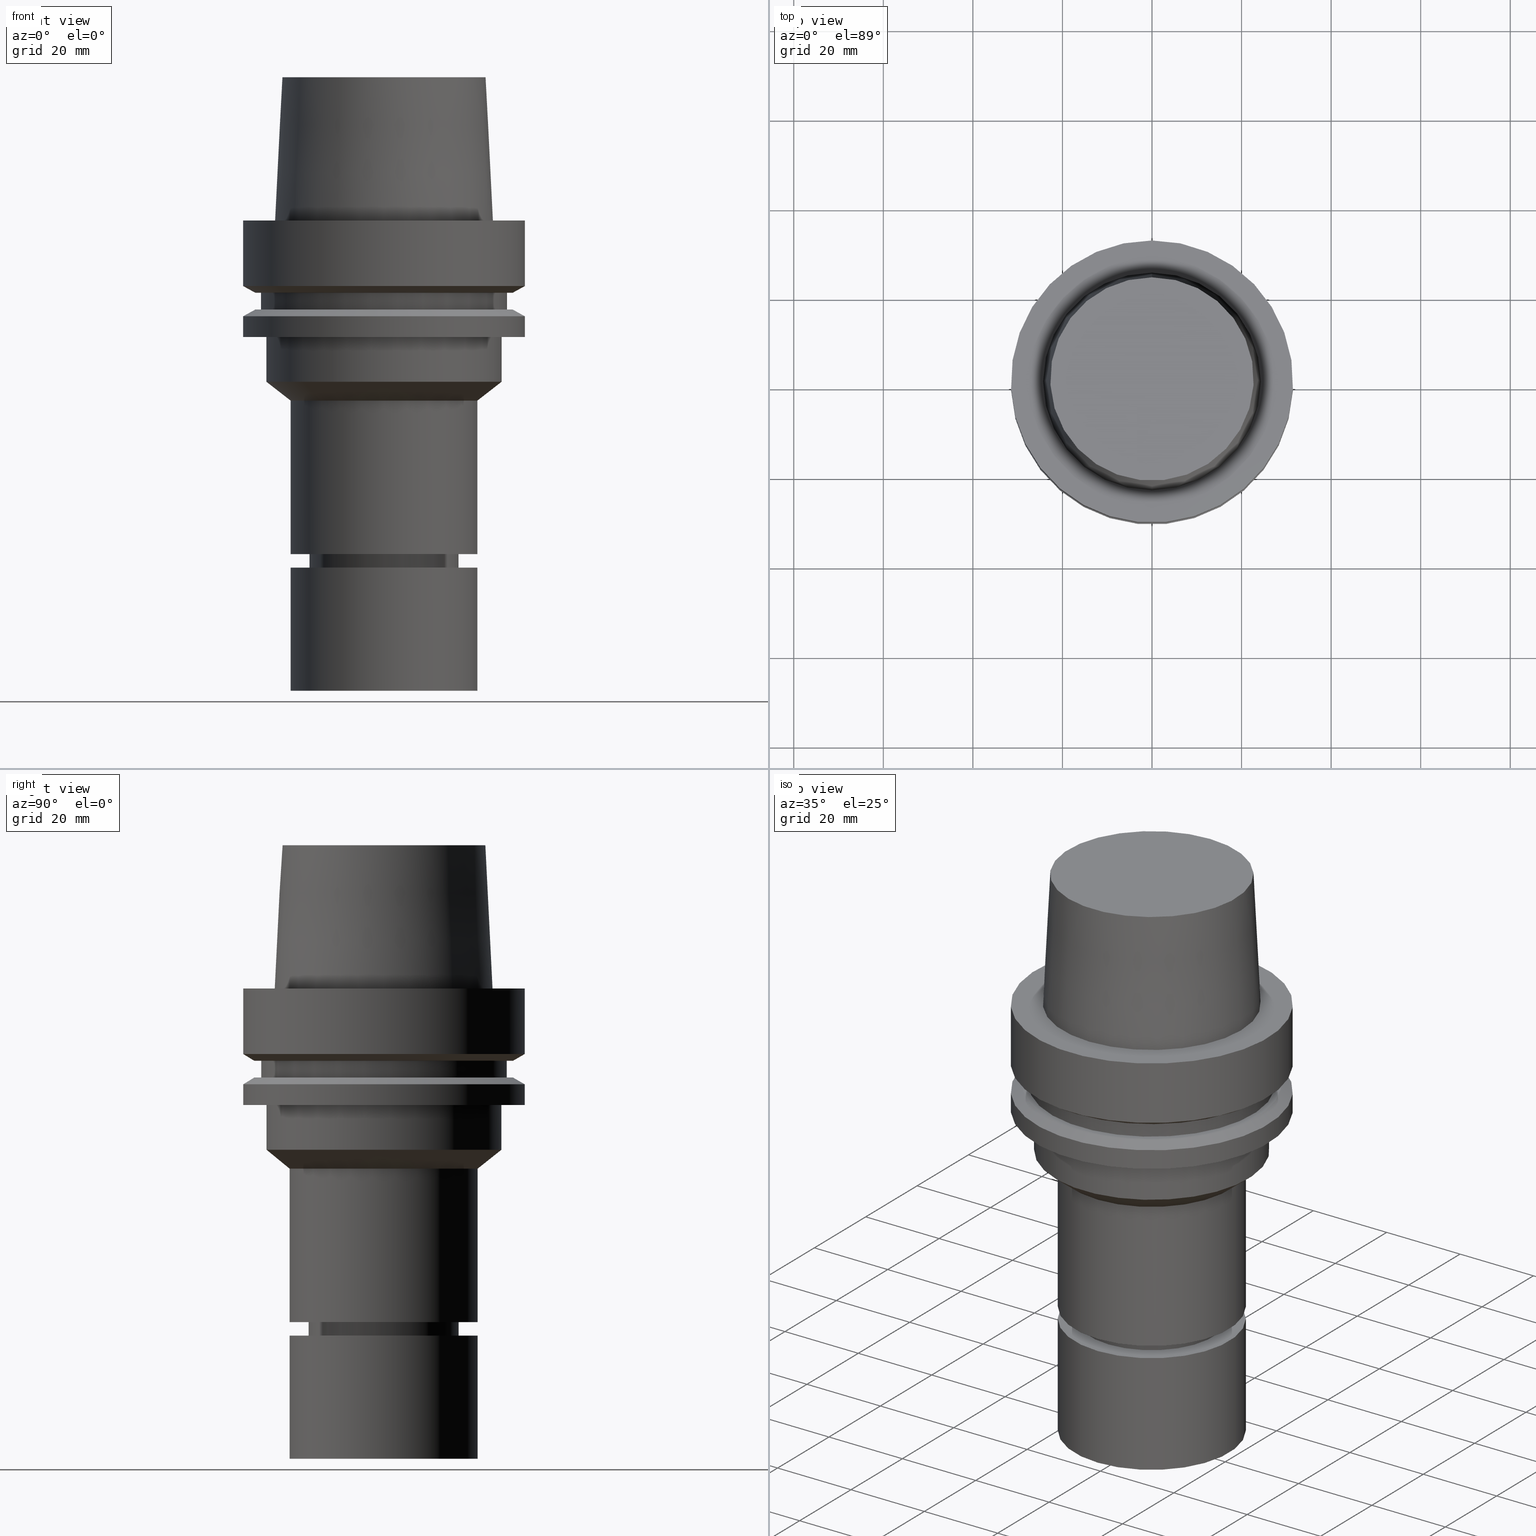
[diagram: canonical four-view strip — front | top / right | iso, engineering-drawing reading convention]
A machine part, canonical four-view strip (front | top / right | iso — engineering-drawing reading convention). The complete STEP part file that produces these views, byte-faithful:
ISO-10303-21;
HEADER;
FILE_DESCRIPTION((''),'1');
FILE_NAME('U:/Translate/02_3D_Field-HP\X2\FF71FF6FFF8CFF9F5916\X0\2013/02_Step_Field-HP\X2\FF71FF6FFF8CFF9F5916\X0\2013/HSK-A63-MEGAER25-105NL.stp','2016-06-22T00:09:00',(''),(''),'Spatial Interop R21 SP3','Kubotek KeyCreator 2011 V10.0.2 (22737)',' ');
FILE_SCHEMA(('automotive_design'));
ENDSEC;
DATA;
#1=MECHANICAL_DESIGN_GEOMETRIC_PRESENTATION_REPRESENTATION(' ',(#14,#15,#16,#17,#18,#19,#20,#21,#22,#23,#24,#25,#26,#27,#28,#29,#30,#31,#32,#33,#34,#35,#36,#37,#38,#39,#40,#41,#42,#43,#44,#45,#46,#47,#48,#49,#50,#51,#52,#53,#54,#55,#56,#57,#58,#59),#10);
#2=PRODUCT_DEFINITION_CONTEXT('',#60,'design');
#3=APPLICATION_PROTOCOL_DEFINITION('INTERNATIONAL STANDARD','automotive_design',1994,#60);
#4=PRODUCT_CATEGORY_RELATIONSHIP('NONE','NONE',#61,#62);
#5=SHAPE_DEFINITION_REPRESENTATION(#63,#64);
#6=PRODUCT_DEFINITION_CONTEXT('',#65,'design');
#7=APPLICATION_PROTOCOL_DEFINITION('INTERNATIONAL STANDARD','automotive_design',1994,#65);
#8=PRODUCT_CATEGORY_RELATIONSHIP('NONE','NONE',#66,#67);
#9=SHAPE_DEFINITION_REPRESENTATION(#68,#69);
#10= (GEOMETRIC_REPRESENTATION_CONTEXT(3)GLOBAL_UNCERTAINTY_ASSIGNED_CONTEXT((#72))GLOBAL_UNIT_ASSIGNED_CONTEXT((#74,#75,#76))REPRESENTATION_CONTEXT('NONE','WORKSPACE'));
#14=STYLED_ITEM('',(#78),#79);
#15=STYLED_ITEM('',(#80),#81);
#16=STYLED_ITEM('',(#82),#83);
#17=STYLED_ITEM('',(#84,#85),#86);
#18=STYLED_ITEM('',(#87,#88),#89);
#19=STYLED_ITEM('',(#90,#91),#92);
#20=STYLED_ITEM('',(#93),#94);
#21=STYLED_ITEM('',(#95,#96),#97);
#22=STYLED_ITEM('',(#98,#99),#100);
#23=STYLED_ITEM('',(#101),#102);
#24=STYLED_ITEM('',(#103,#104),#105);
#25=STYLED_ITEM('',(#106),#107);
#26=STYLED_ITEM('',(#108),#109);
#27=STYLED_ITEM('',(#110,#111),#112);
#28=STYLED_ITEM('',(#113,#114),#115);
#29=STYLED_ITEM('',(#116,#117),#118);
#30=STYLED_ITEM('',(#119,#120),#121);
#31=STYLED_ITEM('',(#122,#123),#124);
#32=STYLED_ITEM('',(#125,#126),#127);
#33=STYLED_ITEM('',(#128,#129),#130);
#34=STYLED_ITEM('',(#131),#132);
#35=STYLED_ITEM('',(#133,#134),#135);
#36=STYLED_ITEM('',(#136),#137);
#37=STYLED_ITEM('',(#138,#139),#140);
#38=STYLED_ITEM('',(#141,#142),#143);
#39=STYLED_ITEM('',(#144),#145);
#40=STYLED_ITEM('',(#146),#147);
#41=STYLED_ITEM('',(#148,#149),#150);
#42=STYLED_ITEM('',(#151),#152);
#43=STYLED_ITEM('',(#153),#154);
#44=STYLED_ITEM('',(#155,#156),#157);
#45=STYLED_ITEM('',(#158,#159),#160);
#46=STYLED_ITEM('',(#161),#162);
#47=STYLED_ITEM('',(#163,#164),#165);
#48=STYLED_ITEM('',(#166,#167),#168);
#49=STYLED_ITEM('',(#169),#170);
#50=STYLED_ITEM('',(#171,#172),#173);
#51=STYLED_ITEM('',(#174),#175);
#52=STYLED_ITEM('',(#176,#177),#178);
#53=STYLED_ITEM('',(#179),#180);
#54=STYLED_ITEM('',(#181),#182);
#55=STYLED_ITEM('',(#183),#184);
#56=STYLED_ITEM('',(#185),#186);
#57=STYLED_ITEM('',(#187,#188),#189);
#58=STYLED_ITEM('',(#190,#191),#192);
#59=STYLED_ITEM('',(#193),#194);
#60=APPLICATION_CONTEXT(' ');
#61=PRODUCT_CATEGORY('part','NONE');
#62=PRODUCT_RELATED_PRODUCT_CATEGORY('detail',' ',(#195));
#63=PRODUCT_DEFINITION_SHAPE('NONE','NONE',#196);
#64=ADVANCED_BREP_SHAPE_REPRESENTATION('Unnamed[1]',(#157,#197),#10);
#65=APPLICATION_CONTEXT(' ');
#66=PRODUCT_CATEGORY('part','NONE');
#67=PRODUCT_RELATED_PRODUCT_CATEGORY('detail',' ',(#198));
#68=PRODUCT_DEFINITION_SHAPE('NONE','NONE',#199);
#69=ADVANCED_BREP_SHAPE_REPRESENTATION('Unnamed[1]',(#118,#200),#10);
#72=UNCERTAINTY_MEASURE_WITH_UNIT(LENGTH_MEASURE(1.0E-006),#74,'','');
#74= (CONVERSION_BASED_UNIT('MILLIMETRE',#203)LENGTH_UNIT()NAMED_UNIT(#206));
#75= (NAMED_UNIT(#208)PLANE_ANGLE_UNIT()SI_UNIT($,.RADIAN.));
#76= (NAMED_UNIT(#208)SOLID_ANGLE_UNIT()SI_UNIT($,.STERADIAN.));
#78=PRESENTATION_STYLE_ASSIGNMENT((#214));
#79=EDGE_CURVE('Unnamed[1]',#215,#215,#216,.T.);
#80=PRESENTATION_STYLE_ASSIGNMENT((#217));
#81=EDGE_CURVE('Unnamed[1]',#218,#218,#219,.T.);
#82=PRESENTATION_STYLE_ASSIGNMENT((#220));
#83=EDGE_CURVE('Unnamed[1]',#221,#221,#222,.T.);
#84=PRESENTATION_STYLE_ASSIGNMENT((#223));
#85=PRESENTATION_STYLE_ASSIGNMENT((#224));
#86=ADVANCED_FACE('Unnamed[1]',(#225,#226),#227,.T.);
#87=PRESENTATION_STYLE_ASSIGNMENT((#228));
#88=PRESENTATION_STYLE_ASSIGNMENT((#229));
#89=ADVANCED_FACE('Unnamed[1]',(#230,#231),#232,.T.);
#90=PRESENTATION_STYLE_ASSIGNMENT((#233));
#91=PRESENTATION_STYLE_ASSIGNMENT((#234));
#92=ADVANCED_FACE('Unnamed[1]',(#235,#236),#237,.T.);
#93=PRESENTATION_STYLE_ASSIGNMENT((#238));
#94=EDGE_CURVE('Unnamed[1]',#239,#239,#240,.T.);
#95=PRESENTATION_STYLE_ASSIGNMENT((#241));
#96=PRESENTATION_STYLE_ASSIGNMENT((#242));
#97=ADVANCED_FACE('Unnamed[1]',(#243,#244),#245,.T.);
#98=PRESENTATION_STYLE_ASSIGNMENT((#246));
#99=PRESENTATION_STYLE_ASSIGNMENT((#247));
#100=ADVANCED_FACE('Unnamed[1]',(#248),#249,.T.);
#101=PRESENTATION_STYLE_ASSIGNMENT((#250));
#102=EDGE_CURVE('Unnamed[1]',#251,#251,#252,.T.);
#103=PRESENTATION_STYLE_ASSIGNMENT((#253));
#104=PRESENTATION_STYLE_ASSIGNMENT((#254));
#105=ADVANCED_FACE('Unnamed[1]',(#255,#256),#257,.T.);
#106=PRESENTATION_STYLE_ASSIGNMENT((#258));
#107=EDGE_CURVE('Unnamed[1]',#259,#259,#260,.T.);
#108=PRESENTATION_STYLE_ASSIGNMENT((#261));
#109=EDGE_CURVE('Unnamed[1]',#262,#262,#263,.T.);
#110=PRESENTATION_STYLE_ASSIGNMENT((#264));
#111=PRESENTATION_STYLE_ASSIGNMENT((#265));
#112=ADVANCED_FACE('Unnamed[1]',(#266,#267),#268,.T.);
#113=PRESENTATION_STYLE_ASSIGNMENT((#269));
#114=PRESENTATION_STYLE_ASSIGNMENT((#270));
#115=ADVANCED_FACE('Unnamed[1]',(#271,#272),#273,.T.);
#116=PRESENTATION_STYLE_ASSIGNMENT((#274));
#117=PRESENTATION_STYLE_ASSIGNMENT((#275));
#118=MANIFOLD_SOLID_BREP('Unnamed[1]',#276);
#119=PRESENTATION_STYLE_ASSIGNMENT((#277));
#120=PRESENTATION_STYLE_ASSIGNMENT((#278));
#121=ADVANCED_FACE('Unnamed[1]',(#279,#280),#281,.T.);
#122=PRESENTATION_STYLE_ASSIGNMENT((#282));
#123=PRESENTATION_STYLE_ASSIGNMENT((#283));
#124=ADVANCED_FACE('Unnamed[1]',(#284,#285),#286,.T.);
#125=PRESENTATION_STYLE_ASSIGNMENT((#287));
#126=PRESENTATION_STYLE_ASSIGNMENT((#288));
#127=ADVANCED_FACE('Unnamed[1]',(#289,#290),#291,.T.);
#128=PRESENTATION_STYLE_ASSIGNMENT((#292));
#129=PRESENTATION_STYLE_ASSIGNMENT((#293));
#130=ADVANCED_FACE('Unnamed[1]',(#294,#295),#296,.T.);
#131=PRESENTATION_STYLE_ASSIGNMENT((#297));
#132=EDGE_CURVE('Unnamed[1]',#298,#298,#299,.T.);
#133=PRESENTATION_STYLE_ASSIGNMENT((#300));
#134=PRESENTATION_STYLE_ASSIGNMENT((#301));
#135=ADVANCED_FACE('Unnamed[1]',(#302,#303),#304,.T.);
#136=PRESENTATION_STYLE_ASSIGNMENT((#305));
#137=EDGE_CURVE('Unnamed[1]',#306,#306,#307,.T.);
#138=PRESENTATION_STYLE_ASSIGNMENT((#308));
#139=PRESENTATION_STYLE_ASSIGNMENT((#309));
#140=ADVANCED_FACE('Unnamed[1]',(#310,#311),#312,.T.);
#141=PRESENTATION_STYLE_ASSIGNMENT((#313));
#142=PRESENTATION_STYLE_ASSIGNMENT((#314));
#143=ADVANCED_FACE('Unnamed[1]',(#315,#316),#317,.T.);
#144=PRESENTATION_STYLE_ASSIGNMENT((#318));
#145=EDGE_CURVE('Unnamed[1]',#319,#319,#320,.T.);
#146=PRESENTATION_STYLE_ASSIGNMENT((#321));
#147=EDGE_CURVE('Unnamed[1]',#322,#322,#323,.T.);
#148=PRESENTATION_STYLE_ASSIGNMENT((#324));
#149=PRESENTATION_STYLE_ASSIGNMENT((#325));
#150=ADVANCED_FACE('Unnamed[1]',(#326,#327),#328,.T.);
#151=PRESENTATION_STYLE_ASSIGNMENT((#329));
#152=EDGE_CURVE('Unnamed[1]',#330,#330,#331,.T.);
#153=PRESENTATION_STYLE_ASSIGNMENT((#332));
#154=EDGE_CURVE('Unnamed[1]',#333,#333,#334,.T.);
#155=PRESENTATION_STYLE_ASSIGNMENT((#335));
#156=PRESENTATION_STYLE_ASSIGNMENT((#336));
#157=MANIFOLD_SOLID_BREP('Unnamed[1]',#337);
#158=PRESENTATION_STYLE_ASSIGNMENT((#338));
#159=PRESENTATION_STYLE_ASSIGNMENT((#339));
#160=ADVANCED_FACE('Unnamed[1]',(#340),#341,.T.);
#161=PRESENTATION_STYLE_ASSIGNMENT((#342));
#162=EDGE_CURVE('Unnamed[1]',#343,#343,#344,.T.);
#163=PRESENTATION_STYLE_ASSIGNMENT((#345));
#164=PRESENTATION_STYLE_ASSIGNMENT((#346));
#165=ADVANCED_FACE('Unnamed[1]',(#347),#348,.T.);
#166=PRESENTATION_STYLE_ASSIGNMENT((#349));
#167=PRESENTATION_STYLE_ASSIGNMENT((#350));
#168=ADVANCED_FACE('Unnamed[1]',(#351),#352,.T.);
#169=PRESENTATION_STYLE_ASSIGNMENT((#353));
#170=EDGE_CURVE('Unnamed[1]',#354,#354,#355,.T.);
#171=PRESENTATION_STYLE_ASSIGNMENT((#356));
#172=PRESENTATION_STYLE_ASSIGNMENT((#357));
#173=ADVANCED_FACE('Unnamed[1]',(#358,#359),#360,.T.);
#174=PRESENTATION_STYLE_ASSIGNMENT((#361));
#175=EDGE_CURVE('Unnamed[1]',#362,#362,#363,.T.);
#176=PRESENTATION_STYLE_ASSIGNMENT((#364));
#177=PRESENTATION_STYLE_ASSIGNMENT((#365));
#178=ADVANCED_FACE('Unnamed[1]',(#366,#367),#368,.T.);
#179=PRESENTATION_STYLE_ASSIGNMENT((#369));
#180=EDGE_CURVE('Unnamed[1]',#370,#370,#371,.T.);
#181=PRESENTATION_STYLE_ASSIGNMENT((#372));
#182=EDGE_CURVE('Unnamed[1]',#373,#373,#374,.T.);
#183=PRESENTATION_STYLE_ASSIGNMENT((#375));
#184=EDGE_CURVE('Unnamed[1]',#376,#376,#377,.T.);
#185=PRESENTATION_STYLE_ASSIGNMENT((#378));
#186=EDGE_CURVE('Unnamed[1]',#379,#379,#380,.T.);
#187=PRESENTATION_STYLE_ASSIGNMENT((#381));
#188=PRESENTATION_STYLE_ASSIGNMENT((#382));
#189=ADVANCED_FACE('Unnamed[1]',(#383,#384),#385,.T.);
#190=PRESENTATION_STYLE_ASSIGNMENT((#386));
#191=PRESENTATION_STYLE_ASSIGNMENT((#387));
#192=ADVANCED_FACE('Unnamed[1]',(#388,#389),#390,.T.);
#193=PRESENTATION_STYLE_ASSIGNMENT((#391));
#194=EDGE_CURVE('Unnamed[1]',#392,#392,#393,.T.);
#195=PRODUCT('Unnamed[1]','Unnamed[1]','PART-Unnamed[1]-DESC',(#394));
#196=PRODUCT_DEFINITION('NONE','NONE',#395,#2);
#197=AXIS2_PLACEMENT_3D('',#396,#397,#398);
#198=PRODUCT('Unnamed[1]','Unnamed[1]','PART-Unnamed[1]-DESC',(#399));
#199=PRODUCT_DEFINITION('NONE','NONE',#400,#6);
#200=AXIS2_PLACEMENT_3D('',#401,#402,#403);
#203=LENGTH_MEASURE_WITH_UNIT(LENGTH_MEASURE(1.0),#404);
#206=DIMENSIONAL_EXPONENTS(1.0,0.0,0.0,0.0,0.0,0.0,0.0);
#208=DIMENSIONAL_EXPONENTS(0.0,0.0,0.0,0.0,0.0,0.0,0.0);
#214=CURVE_STYLE('',#405,POSITIVE_LENGTH_MEASURE(1000.0),#406);
#215=VERTEX_POINT('',#407);
#216=CIRCLE('',#408,27.5);
#217=CURVE_STYLE('',#409,POSITIVE_LENGTH_MEASURE(1000.0),#410);
#218=VERTEX_POINT('',#411);
#219=CIRCLE('',#412,16.0);
#220=CURVE_STYLE('',#413,POSITIVE_LENGTH_MEASURE(1000.0),#414);
#221=VERTEX_POINT('',#415);
#222=CIRCLE('',#416,22.715);
#223=SURFACE_STYLE_USAGE(.BOTH.,#417);
#224=CURVE_STYLE('',#418,POSITIVE_LENGTH_MEASURE(1000.0),#419);
#225=FACE_BOUND('',#420,.T.);
#226=FACE_BOUND('',#421,.T.);
#227=CYLINDRICAL_SURFACE('',#422,27.4999999999994);
#228=SURFACE_STYLE_USAGE(.BOTH.,#423);
#229=CURVE_STYLE('',#424,POSITIVE_LENGTH_MEASURE(1000.0),#425);
#230=FACE_OUTER_BOUND('',#426,.T.);
#231=FACE_BOUND('',#427,.T.);
#232=PLANE('',#428);
#233=SURFACE_STYLE_USAGE(.BOTH.,#429);
#234=CURVE_STYLE('',#430,POSITIVE_LENGTH_MEASURE(1000.0),#431);
#235=FACE_BOUND('',#432,.T.);
#236=FACE_BOUND('',#433,.T.);
#237=CONICAL_SURFACE('',#434,23.65,0.898977865223857);
#238=CURVE_STYLE('',#435,POSITIVE_LENGTH_MEASURE(1000.0),#436);
#239=VERTEX_POINT('',#437);
#240=CIRCLE('',#438,31.4999999999998);
#241=SURFACE_STYLE_USAGE(.BOTH.,#439);
#242=CURVE_STYLE('',#440,POSITIVE_LENGTH_MEASURE(1000.0),#441);
#243=FACE_OUTER_BOUND('',#442,.T.);
#244=FACE_BOUND('',#443,.T.);
#245=PLANE('',#444);
#246=SURFACE_STYLE_USAGE(.BOTH.,#445);
#247=CURVE_STYLE('',#446,POSITIVE_LENGTH_MEASURE(1000.0),#447);
#248=FACE_OUTER_BOUND('',#448,.T.);
#249=PLANE('',#449);
#250=CURVE_STYLE('',#450,POSITIVE_LENGTH_MEASURE(1000.0),#451);
#251=VERTEX_POINT('',#452);
#252=CIRCLE('',#453,28.8975952641919);
#253=SURFACE_STYLE_USAGE(.BOTH.,#454);
#254=CURVE_STYLE('',#455,POSITIVE_LENGTH_MEASURE(1000.0),#456);
#255=FACE_BOUND('',#457,.T.);
#256=FACE_OUTER_BOUND('',#458,.T.);
#257=PLANE('',#459);
#258=CURVE_STYLE('',#460,POSITIVE_LENGTH_MEASURE(1000.0),#461);
#259=VERTEX_POINT('',#462);
#260=CIRCLE('',#463,31.5000000000001);
#261=CURVE_STYLE('',#464,POSITIVE_LENGTH_MEASURE(1000.0),#465);
#262=VERTEX_POINT('',#466);
#263=CIRCLE('',#467,28.8975952641919);
#264=SURFACE_STYLE_USAGE(.BOTH.,#468);
#265=CURVE_STYLE('',#469,POSITIVE_LENGTH_MEASURE(1000.0),#470);
#266=FACE_BOUND('',#471,.T.);
#267=FACE_BOUND('',#472,.T.);
#268=CONICAL_SURFACE('',#473,30.1987976320959,1.04719755119657);
#269=SURFACE_STYLE_USAGE(.BOTH.,#474);
#270=CURVE_STYLE('',#475,POSITIVE_LENGTH_MEASURE(1000.0),#476);
#271=FACE_OUTER_BOUND('',#477,.T.);
#272=FACE_BOUND('',#478,.T.);
#273=PLANE('',#479);
#274=SURFACE_STYLE_USAGE(.BOTH.,#480);
#275=CURVE_STYLE('',#481,POSITIVE_LENGTH_MEASURE(1000.0),#482);
#276=CLOSED_SHELL('',(#160,#168,#189));
#277=SURFACE_STYLE_USAGE(.BOTH.,#483);
#278=CURVE_STYLE('',#484,POSITIVE_LENGTH_MEASURE(1000.0),#485);
#279=FACE_BOUND('',#486,.T.);
#280=FACE_BOUND('',#487,.T.);
#281=CONICAL_SURFACE('',#488,16.3750000000008,0.846178977407518);
#282=SURFACE_STYLE_USAGE(.BOTH.,#489);
#283=CURVE_STYLE('',#490,POSITIVE_LENGTH_MEASURE(1000.0),#491);
#284=FACE_BOUND('',#492,.T.);
#285=FACE_BOUND('',#493,.T.);
#286=CONICAL_SURFACE('',#494,23.515,0.0499583957219433);
#287=SURFACE_STYLE_USAGE(.BOTH.,#495);
#288=CURVE_STYLE('',#496,POSITIVE_LENGTH_MEASURE(1000.0),#497);
#289=FACE_BOUND('',#498,.T.);
#290=FACE_BOUND('',#499,.T.);
#291=CYLINDRICAL_SURFACE('',#500,16.7499999999962);
#292=SURFACE_STYLE_USAGE(.BOTH.,#501);
#293=CURVE_STYLE('',#502,POSITIVE_LENGTH_MEASURE(1000.0),#503);
#294=FACE_BOUND('',#504,.T.);
#295=FACE_BOUND('',#505,.T.);
#296=CYLINDRICAL_SURFACE('',#506,31.5);
#297=CURVE_STYLE('',#507,POSITIVE_LENGTH_MEASURE(1000.0),#508);
#298=VERTEX_POINT('',#509);
#299=CIRCLE('',#510,14.9000000000006);
#300=SURFACE_STYLE_USAGE(.BOTH.,#511);
#301=CURVE_STYLE('',#512,POSITIVE_LENGTH_MEASURE(1000.0),#513);
#302=FACE_BOUND('',#514,.T.);
#303=FACE_BOUND('',#515,.T.);
#304=CYLINDRICAL_SURFACE('',#516,21.0);
#305=CURVE_STYLE('',#517,POSITIVE_LENGTH_MEASURE(1000.0),#518);
#306=VERTEX_POINT('',#519);
#307=CIRCLE('',#520,16.7499999999907);
#308=SURFACE_STYLE_USAGE(.BOTH.,#521);
#309=CURVE_STYLE('',#522,POSITIVE_LENGTH_MEASURE(1000.0),#523);
#310=FACE_BOUND('',#524,.T.);
#311=FACE_BOUND('',#525,.T.);
#312=CONICAL_SURFACE('',#526,15.4500000000003,0.523598775598048);
#313=SURFACE_STYLE_USAGE(.BOTH.,#527);
#314=CURVE_STYLE('',#528,POSITIVE_LENGTH_MEASURE(1000.0),#529);
#315=FACE_BOUND('',#530,.T.);
#316=FACE_BOUND('',#531,.T.);
#317=CYLINDRICAL_SURFACE('',#532,16.0);
#318=CURVE_STYLE('',#533,POSITIVE_LENGTH_MEASURE(1000.0),#534);
#319=VERTEX_POINT('',#535);
#320=CIRCLE('',#536,21.0);
#321=CURVE_STYLE('',#537,POSITIVE_LENGTH_MEASURE(1000.0),#538);
#322=VERTEX_POINT('',#539);
#323=CIRCLE('',#540,26.3);
#324=SURFACE_STYLE_USAGE(.BOTH.,#541);
#325=CURVE_STYLE('',#542,POSITIVE_LENGTH_MEASURE(1000.0),#543);
#326=FACE_BOUND('',#544,.T.);
#327=FACE_BOUND('',#545,.T.);
#328=CONICAL_SURFACE('',#546,30.1987976320959,1.04719755119657);
#329=CURVE_STYLE('',#547,POSITIVE_LENGTH_MEASURE(1000.0),#548);
#330=VERTEX_POINT('',#549);
#331=CIRCLE('',#550,27.4999999999989);
#332=CURVE_STYLE('',#551,POSITIVE_LENGTH_MEASURE(1000.0),#552);
#333=VERTEX_POINT('',#553);
#334=CIRCLE('',#554,24.315);
#335=SURFACE_STYLE_USAGE(.BOTH.,#555);
#336=CURVE_STYLE('',#556,POSITIVE_LENGTH_MEASURE(1000.0),#557);
#337=CLOSED_SHELL('',(#165,#140,#143,#121,#127,#89,#135,#92,#178,#97,#192,#150,#173,#86,#115,#112,#130,#105,#124,#100));
#338=SURFACE_STYLE_USAGE(.BOTH.,#558);
#339=CURVE_STYLE('',#559,POSITIVE_LENGTH_MEASURE(1000.0),#560);
#340=FACE_OUTER_BOUND('',#561,.T.);
#341=PLANE('',#562);
#342=CURVE_STYLE('',#563,POSITIVE_LENGTH_MEASURE(1000.0),#564);
#343=VERTEX_POINT('',#565);
#344=CIRCLE('',#566,21.0);
#345=SURFACE_STYLE_USAGE(.BOTH.,#567);
#346=CURVE_STYLE('',#568,POSITIVE_LENGTH_MEASURE(1000.0),#569);
#347=FACE_OUTER_BOUND('',#570,.T.);
#348=PLANE('',#571);
#349=SURFACE_STYLE_USAGE(.BOTH.,#572);
#350=CURVE_STYLE('',#573,POSITIVE_LENGTH_MEASURE(1000.0),#574);
#351=FACE_OUTER_BOUND('',#575,.T.);
#352=PLANE('',#576);
#353=CURVE_STYLE('',#577,POSITIVE_LENGTH_MEASURE(1000.0),#578);
#354=VERTEX_POINT('',#579);
#355=CIRCLE('',#580,31.5);
#356=SURFACE_STYLE_USAGE(.BOTH.,#581);
#357=CURVE_STYLE('',#582,POSITIVE_LENGTH_MEASURE(1000.0),#583);
#358=FACE_BOUND('',#584,.T.);
#359=FACE_OUTER_BOUND('',#585,.T.);
#360=PLANE('',#586);
#361=CURVE_STYLE('',#587,POSITIVE_LENGTH_MEASURE(1000.0),#588);
#362=VERTEX_POINT('',#589);
#363=CIRCLE('',#590,21.0);
#364=SURFACE_STYLE_USAGE(.BOTH.,#591);
#365=CURVE_STYLE('',#592,POSITIVE_LENGTH_MEASURE(1000.0),#593);
#366=FACE_BOUND('',#594,.T.);
#367=FACE_BOUND('',#595,.T.);
#368=CYLINDRICAL_SURFACE('',#596,26.3);
#369=CURVE_STYLE('',#597,POSITIVE_LENGTH_MEASURE(1000.0),#598);
#370=VERTEX_POINT('',#599);
#371=CIRCLE('',#600,16.0);
#372=CURVE_STYLE('',#601,POSITIVE_LENGTH_MEASURE(1000.0),#602);
#373=VERTEX_POINT('',#603);
#374=CIRCLE('',#604,21.0);
#375=CURVE_STYLE('',#605,POSITIVE_LENGTH_MEASURE(1000.0),#606);
#376=VERTEX_POINT('',#607);
#377=CIRCLE('',#608,16.7500000000017);
#378=CURVE_STYLE('',#609,POSITIVE_LENGTH_MEASURE(1000.0),#610);
#379=VERTEX_POINT('',#611);
#380=CIRCLE('',#612,31.5);
#381=SURFACE_STYLE_USAGE(.BOTH.,#613);
#382=CURVE_STYLE('',#614,POSITIVE_LENGTH_MEASURE(1000.0),#615);
#383=FACE_BOUND('',#616,.T.);
#384=FACE_BOUND('',#617,.T.);
#385=CYLINDRICAL_SURFACE('',#618,21.0);
#386=SURFACE_STYLE_USAGE(.BOTH.,#619);
#387=CURVE_STYLE('',#620,POSITIVE_LENGTH_MEASURE(1000.0),#621);
#388=FACE_BOUND('',#622,.T.);
#389=FACE_BOUND('',#623,.T.);
#390=CYLINDRICAL_SURFACE('',#624,31.4999999999999);
#391=CURVE_STYLE('',#625,POSITIVE_LENGTH_MEASURE(1000.0),#626);
#392=VERTEX_POINT('',#627);
#393=CIRCLE('',#628,26.3);
#394=PRODUCT_CONTEXT('',#60,'mechanical');
#395=PRODUCT_DEFINITION_FORMATION_WITH_SPECIFIED_SOURCE(' ','NONE',#195,.NOT_KNOWN.);
#396=CARTESIAN_POINT('',(0.0,0.0,0.0));
#397=DIRECTION('',(0.0,0.0,1.0));
#398=DIRECTION('',(1.0,0.0,0.0));
#399=PRODUCT_CONTEXT('',#65,'mechanical');
#400=PRODUCT_DEFINITION_FORMATION_WITH_SPECIFIED_SOURCE(' ','NONE',#198,.NOT_KNOWN.);
#401=CARTESIAN_POINT('',(0.0,0.0,0.0));
#402=DIRECTION('',(0.0,0.0,1.0));
#403=DIRECTION('',(1.0,0.0,0.0));
#404= (NAMED_UNIT(#206)LENGTH_UNIT()SI_UNIT(.MILLI.,.METRE.));
#405=DRAUGHTING_PRE_DEFINED_CURVE_FONT('continuous');
#406=COLOUR_RGB('',0.0,1.0,0.0);
#407=CARTESIAN_POINT('',(9.87371481812537E-016,27.5,-16.1249999999997));
#408=AXIS2_PLACEMENT_3D('',#630,#631,#632);
#409=DRAUGHTING_PRE_DEFINED_CURVE_FONT('continuous');
#410=COLOUR_RGB('',0.0,1.0,0.0);
#411=CARTESIAN_POINT('',(4.96785797576917E-015,16.0,-81.131277674967));
#412=AXIS2_PLACEMENT_3D('',#633,#634,#635);
#413=DRAUGHTING_PRE_DEFINED_CURVE_FONT('continuous');
#414=COLOUR_RGB('',0.0,1.0,0.0);
#415=CARTESIAN_POINT('',(-1.95943487863576E-015,22.715,32.0));
#416=AXIS2_PLACEMENT_3D('',#636,#637,#638);
#417=SURFACE_SIDE_STYLE('',(#639));
#418=DRAUGHTING_PRE_DEFINED_CURVE_FONT('continuous');
#419=COLOUR_RGB('',0.0,1.0,0.0);
#420=EDGE_LOOP('',(#640));
#421=EDGE_LOOP('',(#641));
#422=AXIS2_PLACEMENT_3D('',#642,#643,#644);
#423=SURFACE_SIDE_STYLE('',(#645));
#424=DRAUGHTING_PRE_DEFINED_CURVE_FONT('continuous');
#425=COLOUR_RGB('',0.0,1.0,0.0);
#426=EDGE_LOOP('',(#646));
#427=EDGE_LOOP('',(#647));
#428=AXIS2_PLACEMENT_3D('',#648,#649,#650);
#429=SURFACE_SIDE_STYLE('',(#651));
#430=DRAUGHTING_PRE_DEFINED_CURVE_FONT('continuous');
#431=COLOUR_RGB('',0.0,1.0,0.0);
#432=EDGE_LOOP('',(#652));
#433=EDGE_LOOP('',(#653));
#434=AXIS2_PLACEMENT_3D('',#654,#655,#656);
#435=DRAUGHTING_PRE_DEFINED_CURVE_FONT('continuous');
#436=COLOUR_RGB('',0.0,1.0,0.0);
#437=CARTESIAN_POINT('',(1.59204083889155E-015,31.4999999999998,-25.9999999999999));
#438=AXIS2_PLACEMENT_3D('',#657,#658,#659);
#439=SURFACE_SIDE_STYLE('',(#660));
#440=DRAUGHTING_PRE_DEFINED_CURVE_FONT('continuous');
#441=COLOUR_RGB('',0.0,1.0,0.0);
#442=EDGE_LOOP('',(#661));
#443=EDGE_LOOP('',(#662));
#444=AXIS2_PLACEMENT_3D('',#663,#664,#665);
#445=SURFACE_SIDE_STYLE('',(#666));
#446=DRAUGHTING_PRE_DEFINED_CURVE_FONT('continuous');
#447=COLOUR_RGB('',0.0,1.0,0.0);
#448=EDGE_LOOP('',(#667));
#449=AXIS2_PLACEMENT_3D('',#668,#669,#670);
#450=DRAUGHTING_PRE_DEFINED_CURVE_FONT('continuous');
#451=COLOUR_RGB('',0.0,1.0,0.0);
#452=CARTESIAN_POINT('',(9.87371481812551E-016,28.8975952641919,-16.125));
#453=AXIS2_PLACEMENT_3D('',#671,#672,#673);
#454=SURFACE_SIDE_STYLE('',(#674));
#455=DRAUGHTING_PRE_DEFINED_CURVE_FONT('continuous');
#456=COLOUR_RGB('',0.0,1.0,0.0);
#457=EDGE_LOOP('',(#675));
#458=EDGE_LOOP('',(#676));
#459=AXIS2_PLACEMENT_3D('',#677,#678,#679);
#460=DRAUGHTING_PRE_DEFINED_CURVE_FONT('continuous');
#461=COLOUR_RGB('',0.0,1.0,0.0);
#462=CARTESIAN_POINT('',(-3.88267476788467E-031,31.5000000000001,3.85763741731417E-015));
#463=AXIS2_PLACEMENT_3D('',#680,#681,#682);
#464=DRAUGHTING_PRE_DEFINED_CURVE_FONT('continuous');
#465=COLOUR_RGB('',0.0,1.0,0.0);
#466=CARTESIAN_POINT('',(1.21699275665268E-015,28.8975952641919,-19.875));
#467=AXIS2_PLACEMENT_3D('',#683,#684,#685);
#468=SURFACE_SIDE_STYLE('',(#686));
#469=DRAUGHTING_PRE_DEFINED_CURVE_FONT('continuous');
#470=COLOUR_RGB('',0.0,1.0,0.0);
#471=EDGE_LOOP('',(#687));
#472=EDGE_LOOP('',(#688));
#473=AXIS2_PLACEMENT_3D('',#689,#690,#691);
#474=SURFACE_SIDE_STYLE('',(#692));
#475=DRAUGHTING_PRE_DEFINED_CURVE_FONT('continuous');
#476=COLOUR_RGB('',0.0,1.0,0.0);
#477=EDGE_LOOP('',(#693));
#478=EDGE_LOOP('',(#694));
#479=AXIS2_PLACEMENT_3D('',#695,#696,#697);
#480=SURFACE_SIDE_STYLE('',(#698));
#481=DRAUGHTING_PRE_DEFINED_CURVE_FONT('continuous');
#482=COLOUR_RGB('',0.0,1.0,0.0);
#483=SURFACE_SIDE_STYLE('',(#699));
#484=DRAUGHTING_PRE_DEFINED_CURVE_FONT('continuous');
#485=COLOUR_RGB('',0.0,1.0,0.0);
#486=EDGE_LOOP('',(#700));
#487=EDGE_LOOP('',(#701));
#488=AXIS2_PLACEMENT_3D('',#702,#703,#704);
#489=SURFACE_SIDE_STYLE('',(#705));
#490=DRAUGHTING_PRE_DEFINED_CURVE_FONT('continuous');
#491=COLOUR_RGB('',0.0,1.0,0.0);
#492=EDGE_LOOP('',(#706));
#493=EDGE_LOOP('',(#707));
#494=AXIS2_PLACEMENT_3D('',#708,#709,#710);
#495=SURFACE_SIDE_STYLE('',(#711));
#496=DRAUGHTING_PRE_DEFINED_CURVE_FONT('continuous');
#497=COLOUR_RGB('',0.0,1.0,0.0);
#498=EDGE_LOOP('',(#712));
#499=EDGE_LOOP('',(#713));
#500=AXIS2_PLACEMENT_3D('',#714,#715,#716);
#501=SURFACE_SIDE_STYLE('',(#717));
#502=DRAUGHTING_PRE_DEFINED_CURVE_FONT('continuous');
#503=COLOUR_RGB('',0.0,1.0,0.0);
#504=EDGE_LOOP('',(#718));
#505=EDGE_LOOP('',(#719));
#506=AXIS2_PLACEMENT_3D('',#720,#721,#722);
#507=DRAUGHTING_PRE_DEFINED_CURVE_FONT('continuous');
#508=COLOUR_RGB('',0.0,1.0,0.0);
#509=CARTESIAN_POINT('',(5.80482582795847E-015,14.9000000000007,-94.8000000000002));
#510=AXIS2_PLACEMENT_3D('',#723,#724,#725);
#511=SURFACE_SIDE_STYLE('',(#726));
#512=DRAUGHTING_PRE_DEFINED_CURVE_FONT('continuous');
#513=COLOUR_RGB('',0.0,1.0,0.0);
#514=EDGE_LOOP('',(#727));
#515=EDGE_LOOP('',(#728));
#516=AXIS2_PLACEMENT_3D('',#729,#730,#731);
#517=DRAUGHTING_PRE_DEFINED_CURVE_FONT('continuous');
#518=COLOUR_RGB('',0.0,1.0,0.0);
#519=CARTESIAN_POINT('',(4.56180932682384E-015,16.7499999999907,-74.4999999999992));
#520=AXIS2_PLACEMENT_3D('',#732,#733,#734);
#521=SURFACE_SIDE_STYLE('',(#735));
#522=DRAUGHTING_PRE_DEFINED_CURVE_FONT('continuous');
#523=COLOUR_RGB('',0.0,1.0,0.0);
#524=EDGE_LOOP('',(#736));
#525=EDGE_LOOP('',(#737));
#526=AXIS2_PLACEMENT_3D('',#738,#739,#740);
#527=SURFACE_SIDE_STYLE('',(#741));
#528=DRAUGHTING_PRE_DEFINED_CURVE_FONT('continuous');
#529=COLOUR_RGB('',0.0,1.0,0.0);
#530=EDGE_LOOP('',(#742));
#531=EDGE_LOOP('',(#743));
#532=AXIS2_PLACEMENT_3D('',#744,#745,#746);
#533=DRAUGHTING_PRE_DEFINED_CURVE_FONT('continuous');
#534=COLOUR_RGB('',0.0,1.0,0.0);
#535=CARTESIAN_POINT('',(2.46243754685596E-015,21.0,-40.21465697));
#536=AXIS2_PLACEMENT_3D('',#747,#748,#749);
#537=DRAUGHTING_PRE_DEFINED_CURVE_FONT('continuous');
#538=COLOUR_RGB('',0.0,1.0,0.0);
#539=CARTESIAN_POINT('',(1.59204083889154E-015,26.3,-25.9999999999997));
#540=AXIS2_PLACEMENT_3D('',#750,#751,#752);
#541=SURFACE_SIDE_STYLE('',(#753));
#542=DRAUGHTING_PRE_DEFINED_CURVE_FONT('continuous');
#543=COLOUR_RGB('',0.0,1.0,0.0);
#544=EDGE_LOOP('',(#754));
#545=EDGE_LOOP('',(#755));
#546=AXIS2_PLACEMENT_3D('',#756,#757,#758);
#547=DRAUGHTING_PRE_DEFINED_CURVE_FONT('continuous');
#548=COLOUR_RGB('',0.0,1.0,0.0);
#549=CARTESIAN_POINT('',(1.21699275665276E-015,27.4999999999989,-19.8750000000013));
#550=AXIS2_PLACEMENT_3D('',#759,#760,#761);
#551=DRAUGHTING_PRE_DEFINED_CURVE_FONT('continuous');
#552=COLOUR_RGB('',0.0,1.0,0.0);
#553=CARTESIAN_POINT('',(-2.99705514225764E-031,24.315,2.97772869212679E-015));
#554=AXIS2_PLACEMENT_3D('',#762,#763,#764);
#555=SURFACE_SIDE_STYLE('',(#765));
#556=DRAUGHTING_PRE_DEFINED_CURVE_FONT('continuous');
#557=COLOUR_RGB('',0.0,1.0,0.0);
#558=SURFACE_SIDE_STYLE('',(#766));
#559=DRAUGHTING_PRE_DEFINED_CURVE_FONT('continuous');
#560=COLOUR_RGB('',0.0,1.0,0.0);
#561=EDGE_LOOP('',(#767));
#562=AXIS2_PLACEMENT_3D('',#768,#769,#770);
#563=DRAUGHTING_PRE_DEFINED_CURVE_FONT('continuous');
#564=COLOUR_RGB('',0.0,1.0,0.0);
#565=CARTESIAN_POINT('',(4.56180932682389E-015,21.0,-74.5));
#566=AXIS2_PLACEMENT_3D('',#771,#772,#773);
#567=SURFACE_SIDE_STYLE('',(#774));
#568=DRAUGHTING_PRE_DEFINED_CURVE_FONT('continuous');
#569=COLOUR_RGB('',0.0,1.0,0.0);
#570=EDGE_LOOP('',(#775));
#571=AXIS2_PLACEMENT_3D('',#776,#777,#778);
#572=SURFACE_SIDE_STYLE('',(#779));
#573=DRAUGHTING_PRE_DEFINED_CURVE_FONT('continuous');
#574=COLOUR_RGB('',0.0,1.0,0.0);
#575=EDGE_LOOP('',(#780));
#576=AXIS2_PLACEMENT_3D('',#781,#782,#783);
#577=DRAUGHTING_PRE_DEFINED_CURVE_FONT('continuous');
#578=COLOUR_RGB('',0.0,1.0,0.0);
#579=CARTESIAN_POINT('',(1.30899429078397E-015,31.5,-21.3774990747592));
#580=AXIS2_PLACEMENT_3D('',#784,#785,#786);
#581=SURFACE_SIDE_STYLE('',(#787));
#582=DRAUGHTING_PRE_DEFINED_CURVE_FONT('continuous');
#583=COLOUR_RGB('',0.0,1.0,0.0);
#584=EDGE_LOOP('',(#788));
#585=EDGE_LOOP('',(#789));
#586=AXIS2_PLACEMENT_3D('',#790,#791,#792);
#587=DRAUGHTING_PRE_DEFINED_CURVE_FONT('continuous');
#588=COLOUR_RGB('',0.0,1.0,0.0);
#589=CARTESIAN_POINT('',(4.74550634669599E-015,21.0,-77.5));
#590=AXIS2_PLACEMENT_3D('',#793,#794,#795);
#591=SURFACE_SIDE_STYLE('',(#796));
#592=DRAUGHTING_PRE_DEFINED_CURVE_FONT('continuous');
#593=COLOUR_RGB('',0.0,1.0,0.0);
#594=EDGE_LOOP('',(#797));
#595=EDGE_LOOP('',(#798));
#596=AXIS2_PLACEMENT_3D('',#799,#800,#801);
#597=DRAUGHTING_PRE_DEFINED_CURVE_FONT('continuous');
#598=COLOUR_RGB('',0.0,1.0,0.0);
#599=CARTESIAN_POINT('',(5.68816255169872E-015,16.0,-92.8947441116744));
#600=AXIS2_PLACEMENT_3D('',#802,#803,#804);
#601=DRAUGHTING_PRE_DEFINED_CURVE_FONT('continuous');
#602=COLOUR_RGB('',0.0,1.0,0.0);
#603=CARTESIAN_POINT('',(6.4293956955236E-015,21.0,-105.0));
#604=AXIS2_PLACEMENT_3D('',#805,#806,#807);
#605=DRAUGHTING_PRE_DEFINED_CURVE_FONT('continuous');
#606=COLOUR_RGB('',0.0,1.0,0.0);
#607=CARTESIAN_POINT('',(4.92720259161802E-015,16.7500000000017,-80.4673248653984));
#608=AXIS2_PLACEMENT_3D('',#808,#809,#810);
#609=DRAUGHTING_PRE_DEFINED_CURVE_FONT('continuous');
#610=COLOUR_RGB('',0.0,1.0,0.0);
#611=CARTESIAN_POINT('',(8.95369947681261E-016,31.5,-14.6225009252407));
#612=AXIS2_PLACEMENT_3D('',#811,#812,#813);
#613=SURFACE_SIDE_STYLE('',(#814));
#614=DRAUGHTING_PRE_DEFINED_CURVE_FONT('continuous');
#615=COLOUR_RGB('',0.0,1.0,0.0);
#616=EDGE_LOOP('',(#815));
#617=EDGE_LOOP('',(#816));
#618=AXIS2_PLACEMENT_3D('',#817,#818,#819);
#619=SURFACE_SIDE_STYLE('',(#820));
#620=DRAUGHTING_PRE_DEFINED_CURVE_FONT('continuous');
#621=COLOUR_RGB('',0.0,1.0,0.0);
#622=EDGE_LOOP('',(#821));
#623=EDGE_LOOP('',(#822));
#624=AXIS2_PLACEMENT_3D('',#823,#824,#825);
#625=DRAUGHTING_PRE_DEFINED_CURVE_FONT('continuous');
#626=COLOUR_RGB('',0.0,1.0,0.0);
#627=CARTESIAN_POINT('',(2.20436423799915E-015,26.3,-35.9999999923883));
#628=AXIS2_PLACEMENT_3D('',#826,#827,#828);
#630=CARTESIAN_POINT('',(9.87371481812538E-016,1.97474296362508E-015,-16.1249999999997));
#631=DIRECTION('',(-6.12323399573677E-017,-1.22464679914735E-016,1.0));
#632=DIRECTION('',(-1.23259516440783E-032,1.0,1.22464679914735E-016));
#633=CARTESIAN_POINT('',(4.96785797576917E-015,9.93571595153834E-015,-81.131277674967));
#634=DIRECTION('',(-6.12323399573677E-017,-1.22464679914735E-016,1.0));
#635=DIRECTION('',(-1.23259516440783E-032,1.0,1.22464679914735E-016));
#636=CARTESIAN_POINT('',(-1.95943487863576E-015,-3.91886975727153E-015,32.0));
#637=DIRECTION('',(-6.12323399573676E-017,-1.22464679914735E-016,1.0));
#638=DIRECTION('',(-1.23259516440783E-032,1.0,1.22464679914735E-016));
#639=SURFACE_STYLE_FILL_AREA(#829);
#640=ORIENTED_EDGE('',*,*,#79,.F.);
#641=ORIENTED_EDGE('',*,*,#152,.T.);
#642=CARTESIAN_POINT('',(1.10218211923265E-015,2.2043642384653E-015,-18.0000000000005));
#643=DIRECTION('',(-6.12323399573677E-017,-1.22464679914735E-016,1.0));
#644=DIRECTION('',(-1.23259516440783E-032,1.0,1.22464679914735E-016));
#645=SURFACE_STYLE_FILL_AREA(#830);
#646=ORIENTED_EDGE('',*,*,#162,.F.);
#647=ORIENTED_EDGE('',*,*,#137,.T.);
#648=CARTESIAN_POINT('',(4.56180932682387E-015,18.8749999999954,-74.4999999999996));
#649=DIRECTION('',(6.12323399573677E-017,-1.77095252944571E-013,-1.0));
#650=DIRECTION('',(-1.08391295804072E-029,-1.0,1.77095252944571E-013));
#651=SURFACE_STYLE_FILL_AREA(#831);
#652=ORIENTED_EDGE('',*,*,#194,.F.);
#653=ORIENTED_EDGE('',*,*,#145,.T.);
#654=CARTESIAN_POINT('',(2.33340089242756E-015,4.66680178485512E-015,-38.1073284811941));
#655=DIRECTION('',(-6.12323399573677E-017,-1.22464679914735E-016,1.0));
#656=DIRECTION('',(-1.23259516440783E-032,1.0,1.22464679914735E-016));
#657=CARTESIAN_POINT('',(1.59204083889155E-015,3.1840816777831E-015,-25.9999999999999));
#658=DIRECTION('',(-6.12323399573676E-017,-1.22464679914735E-016,1.0));
#659=DIRECTION('',(-1.23259516440783E-032,1.0,1.22464679914735E-016));
#660=SURFACE_STYLE_FILL_AREA(#832);
#661=ORIENTED_EDGE('',*,*,#94,.F.);
#662=ORIENTED_EDGE('',*,*,#147,.T.);
#663=CARTESIAN_POINT('',(1.59204083889155E-015,28.8999999999999,-25.9999999999998));
#664=DIRECTION('',(6.12323399573677E-017,-4.01871712910923E-014,-1.0));
#665=DIRECTION('',(-2.45592738169036E-030,-1.0,4.01871712910923E-014));
#666=SURFACE_STYLE_FILL_AREA(#833);
#667=ORIENTED_EDGE('',*,*,#83,.T.);
#668=CARTESIAN_POINT('',(-1.95943487863576E-015,11.3575,32.0));
#669=DIRECTION('',(-6.12323399573677E-017,9.72362339746437E-016,1.0));
#670=DIRECTION('',(5.47128686183263E-032,1.0,-9.72362339746437E-016));
#671=CARTESIAN_POINT('',(9.87371481812552E-016,1.9747429636251E-015,-16.125));
#672=DIRECTION('',(-6.12323399573677E-017,-1.22464679914735E-016,1.0));
#673=DIRECTION('',(-1.23259516440783E-032,1.0,1.22464679914735E-016));
#674=SURFACE_STYLE_FILL_AREA(#834);
#675=ORIENTED_EDGE('',*,*,#154,.F.);
#676=ORIENTED_EDGE('',*,*,#107,.T.);
#677=CARTESIAN_POINT('',(-3.43986495507116E-031,27.9075,3.41768305472048E-015));
#678=DIRECTION('',(-6.12323399573677E-017,-1.22464679914735E-016,1.0));
#679=DIRECTION('',(-1.23259516440783E-032,1.0,1.22464679914735E-016));
#680=CARTESIAN_POINT('',(0.0,0.0,0.0));
#681=DIRECTION('',(-6.12323399573677E-017,-1.22464679914735E-016,1.0));
#682=DIRECTION('',(-1.23259516440783E-032,1.0,1.22464679914735E-016));
#683=CARTESIAN_POINT('',(1.21699275665268E-015,2.43398551330536E-015,-19.875));
#684=DIRECTION('',(-6.12323399573677E-017,-1.22464679914735E-016,1.0));
#685=DIRECTION('',(-1.23259516440783E-032,1.0,1.22464679914735E-016));
#686=SURFACE_STYLE_FILL_AREA(#835);
#687=ORIENTED_EDGE('',*,*,#186,.F.);
#688=ORIENTED_EDGE('',*,*,#102,.T.);
#689=CARTESIAN_POINT('',(9.41370714746907E-016,1.88274142949381E-015,-15.3737504626203));
#690=DIRECTION('',(-6.12323399573677E-017,-1.22464679914735E-016,1.0));
#691=DIRECTION('',(-1.23259516440783E-032,1.0,1.22464679914735E-016));
#692=SURFACE_STYLE_FILL_AREA(#836);
#693=ORIENTED_EDGE('',*,*,#102,.F.);
#694=ORIENTED_EDGE('',*,*,#79,.T.);
#695=CARTESIAN_POINT('',(9.87371481812544E-016,28.1987976320959,-16.1249999999999));
#696=DIRECTION('',(6.12323399573677E-017,-1.65108768595307E-013,-1.0));
#697=DIRECTION('',(-1.01051690958394E-029,-1.0,1.65108768595307E-013));
#698=SURFACE_STYLE_FILL_AREA(#837);
#699=SURFACE_STYLE_FILL_AREA(#838);
#700=ORIENTED_EDGE('',*,*,#184,.F.);
#701=ORIENTED_EDGE('',*,*,#81,.T.);
#702=CARTESIAN_POINT('',(4.9475302836936E-015,9.89506056738719E-015,-80.7993012701827));
#703=DIRECTION('',(-6.12323399573677E-017,-1.22464679914735E-016,1.0));
#704=DIRECTION('',(-1.23259516440783E-032,1.0,1.22464679914735E-016));
#705=SURFACE_STYLE_FILL_AREA(#839);
#706=ORIENTED_EDGE('',*,*,#83,.F.);
#707=ORIENTED_EDGE('',*,*,#154,.T.);
#708=CARTESIAN_POINT('',(-9.79717439317882E-016,-1.95943487863576E-015,16.0));
#709=DIRECTION('',(6.12323399573677E-017,1.22464679914735E-016,-1.0));
#710=DIRECTION('',(-1.23259516440783E-032,1.0,1.22464679914735E-016));
#711=SURFACE_STYLE_FILL_AREA(#840);
#712=ORIENTED_EDGE('',*,*,#137,.F.);
#713=ORIENTED_EDGE('',*,*,#184,.T.);
#714=CARTESIAN_POINT('',(4.74450595922093E-015,9.48901191844186E-015,-77.4836624326988));
#715=DIRECTION('',(-6.12323399573676E-017,-1.22464679914735E-016,1.0));
#716=DIRECTION('',(-1.23259516440783E-032,1.0,1.22464679914735E-016));
#717=SURFACE_STYLE_FILL_AREA(#841);
#718=ORIENTED_EDGE('',*,*,#107,.F.);
#719=ORIENTED_EDGE('',*,*,#186,.T.);
#720=CARTESIAN_POINT('',(4.47684973840631E-016,8.95369947681262E-016,-7.31125046262035));
#721=DIRECTION('',(-6.12323399573677E-017,-1.22464679914735E-016,1.0));
#722=DIRECTION('',(-1.23259516440783E-032,1.0,1.22464679914735E-016));
#723=CARTESIAN_POINT('',(5.80482582795847E-015,1.16096516559169E-014,-94.8000000000002));
#724=DIRECTION('',(-6.12323399573677E-017,-1.22464679914735E-016,1.0));
#725=DIRECTION('',(-1.23259516440783E-032,1.0,1.22464679914735E-016));
#726=SURFACE_STYLE_FILL_AREA(#842);
#727=ORIENTED_EDGE('',*,*,#145,.F.);
#728=ORIENTED_EDGE('',*,*,#162,.T.);
#729=CARTESIAN_POINT('',(3.51212343683993E-015,7.02424687367985E-015,-57.357328485));
#730=DIRECTION('',(-6.12323399573677E-017,-1.22464679914735E-016,1.0));
#731=DIRECTION('',(-1.23259516440783E-032,1.0,1.22464679914735E-016));
#732=CARTESIAN_POINT('',(4.56180932682384E-015,9.12361865364768E-015,-74.4999999999992));
#733=DIRECTION('',(-6.12323399573677E-017,-1.22464679914735E-016,1.0));
#734=DIRECTION('',(-1.23259516440783E-032,1.0,1.22464679914735E-016));
#735=SURFACE_STYLE_FILL_AREA(#843);
#736=ORIENTED_EDGE('',*,*,#180,.F.);
#737=ORIENTED_EDGE('',*,*,#132,.T.);
#738=CARTESIAN_POINT('',(5.7464941898286E-015,1.14929883796572E-014,-93.8473720558373));
#739=DIRECTION('',(-6.12323399573677E-017,-1.22464679914735E-016,1.0));
#740=DIRECTION('',(-1.23259516440783E-032,1.0,1.22464679914735E-016));
#741=SURFACE_STYLE_FILL_AREA(#844);
#742=ORIENTED_EDGE('',*,*,#81,.F.);
#743=ORIENTED_EDGE('',*,*,#180,.T.);
#744=CARTESIAN_POINT('',(5.32801026373395E-015,1.06560205274679E-014,-87.0130108933207));
#745=DIRECTION('',(-6.12323399573677E-017,-1.22464679914735E-016,1.0));
#746=DIRECTION('',(-1.23259516440783E-032,1.0,1.22464679914735E-016));
#747=CARTESIAN_POINT('',(2.46243754685596E-015,4.92487509371193E-015,-40.21465697));
#748=DIRECTION('',(-6.12323399573677E-017,-1.22464679914735E-016,1.0));
#749=DIRECTION('',(-1.23259516440783E-032,1.0,1.22464679914735E-016));
#750=CARTESIAN_POINT('',(1.59204083889154E-015,3.18408167778308E-015,-25.9999999999997));
#751=DIRECTION('',(-6.12323399573677E-017,-1.22464679914735E-016,1.0));
#752=DIRECTION('',(-1.23259516440783E-032,1.0,1.22464679914735E-016));
#753=SURFACE_STYLE_FILL_AREA(#845);
#754=ORIENTED_EDGE('',*,*,#109,.F.);
#755=ORIENTED_EDGE('',*,*,#170,.T.);
#756=CARTESIAN_POINT('',(1.26299352371833E-015,2.52598704743665E-015,-20.6262495373796));
#757=DIRECTION('',(6.12323399573677E-017,1.22464679914735E-016,-1.0));
#758=DIRECTION('',(-1.23259516440783E-032,1.0,1.22464679914735E-016));
#759=CARTESIAN_POINT('',(1.21699275665276E-015,2.43398551330552E-015,-19.8750000000013));
#760=DIRECTION('',(-6.12323399573677E-017,-1.22464679914735E-016,1.0));
#761=DIRECTION('',(-1.23259516440783E-032,1.0,1.22464679914735E-016));
#762=CARTESIAN_POINT('',(0.0,0.0,0.0));
#763=DIRECTION('',(-6.12323399573677E-017,-1.22464679914735E-016,1.0));
#764=DIRECTION('',(-1.23259516440783E-032,1.0,1.22464679914735E-016));
#765=SURFACE_STYLE_FILL_AREA(#846);
#766=SURFACE_STYLE_FILL_AREA(#847);
#767=ORIENTED_EDGE('',*,*,#182,.T.);
#768=CARTESIAN_POINT('',(6.4293956955236E-015,10.5,-105.0));
#769=DIRECTION('',(6.12323399573677E-017,1.22464679914735E-016,-1.0));
#770=DIRECTION('',(-1.23259516440783E-032,1.0,1.22464679914735E-016));
#771=CARTESIAN_POINT('',(4.56180932682389E-015,9.12361865364778E-015,-74.5));
#772=DIRECTION('',(-6.12323399573677E-017,-1.22464679914735E-016,1.0));
#773=DIRECTION('',(-1.23259516440783E-032,1.0,1.22464679914735E-016));
#774=SURFACE_STYLE_FILL_AREA(#848);
#775=ORIENTED_EDGE('',*,*,#132,.F.);
#776=CARTESIAN_POINT('',(5.80482582795845E-015,7.45000000000033,-94.8));
#777=DIRECTION('',(6.12323399573677E-017,-2.75362458396048E-014,-1.0));
#778=DIRECTION('',(-1.68128161366956E-030,-1.0,2.75362458396048E-014));
#779=SURFACE_STYLE_FILL_AREA(#849);
#780=ORIENTED_EDGE('',*,*,#175,.F.);
#781=CARTESIAN_POINT('',(4.74550634669599E-015,10.5,-77.5));
#782=DIRECTION('',(-6.12323399573677E-017,-1.22464679914735E-016,1.0));
#783=DIRECTION('',(1.23259516440783E-032,-1.0,-1.22464679914735E-016));
#784=CARTESIAN_POINT('',(1.30899429078397E-015,2.61798858156794E-015,-21.3774990747592));
#785=DIRECTION('',(-6.12323399573677E-017,-1.22464679914735E-016,1.0));
#786=DIRECTION('',(-1.23259516440783E-032,1.0,1.22464679914735E-016));
#787=SURFACE_STYLE_FILL_AREA(#850);
#788=ORIENTED_EDGE('',*,*,#152,.F.);
#789=ORIENTED_EDGE('',*,*,#109,.T.);
#790=CARTESIAN_POINT('',(1.21699275665272E-015,28.1987976320954,-19.8750000000006));
#791=DIRECTION('',(-6.12323399573677E-017,-9.58463617675421E-013,1.0));
#792=DIRECTION('',(-5.86937972270006E-029,1.0,9.58463617675421E-013));
#793=CARTESIAN_POINT('',(4.74550634669599E-015,9.49101269339199E-015,-77.5));
#794=DIRECTION('',(6.12323399573677E-017,1.22464679914735E-016,-1.0));
#795=DIRECTION('',(-1.23259516440783E-032,1.0,1.22464679914735E-016));
#796=SURFACE_STYLE_FILL_AREA(#851);
#797=ORIENTED_EDGE('',*,*,#147,.F.);
#798=ORIENTED_EDGE('',*,*,#194,.T.);
#799=CARTESIAN_POINT('',(1.89820253844535E-015,3.79640507689069E-015,-30.999999996194));
#800=DIRECTION('',(-6.12323399573677E-017,-1.22464679914735E-016,1.0));
#801=DIRECTION('',(-1.23259516440783E-032,1.0,1.22464679914735E-016));
#802=CARTESIAN_POINT('',(5.68816255169872E-015,1.13763251033974E-014,-92.8947441116744));
#803=DIRECTION('',(-6.12323399573677E-017,-1.22464679914735E-016,1.0));
#804=DIRECTION('',(-1.23259516440783E-032,1.0,1.22464679914735E-016));
#805=CARTESIAN_POINT('',(6.4293956955236E-015,1.28587913910472E-014,-105.0));
#806=DIRECTION('',(6.12323399573677E-017,1.22464679914735E-016,-1.0));
#807=DIRECTION('',(-1.23259516440783E-032,1.0,1.22464679914735E-016));
#808=CARTESIAN_POINT('',(4.92720259161802E-015,9.85440518323604E-015,-80.4673248653984));
#809=DIRECTION('',(-6.12323399573677E-017,-1.22464679914735E-016,1.0));
#810=DIRECTION('',(-1.23259516440783E-032,1.0,1.22464679914735E-016));
#811=CARTESIAN_POINT('',(8.95369947681262E-016,1.79073989536252E-015,-14.6225009252407));
#812=DIRECTION('',(-6.12323399573677E-017,-1.22464679914735E-016,1.0));
#813=DIRECTION('',(-1.23259516440783E-032,1.0,1.22464679914735E-016));
#814=SURFACE_STYLE_FILL_AREA(#852);
#815=ORIENTED_EDGE('',*,*,#182,.F.);
#816=ORIENTED_EDGE('',*,*,#175,.T.);
#817=CARTESIAN_POINT('',(5.5874510211098E-015,1.11749020422196E-014,-91.25));
#818=DIRECTION('',(6.12323399573677E-017,1.22464679914735E-016,-1.0));
#819=DIRECTION('',(-1.23259516440783E-032,1.0,1.22464679914735E-016));
#820=SURFACE_STYLE_FILL_AREA(#853);
#821=ORIENTED_EDGE('',*,*,#170,.F.);
#822=ORIENTED_EDGE('',*,*,#94,.T.);
#823=CARTESIAN_POINT('',(1.45051756483776E-015,2.90103512967552E-015,-23.6887495373796));
#824=DIRECTION('',(-6.12323399573677E-017,-1.22464679914735E-016,1.0));
#825=DIRECTION('',(-1.23259516440783E-032,1.0,1.22464679914735E-016));
#826=CARTESIAN_POINT('',(2.20436423799915E-015,4.4087284759983E-015,-35.9999999923883));
#827=DIRECTION('',(-6.12323399573677E-017,-1.22464679914735E-016,1.0));
#828=DIRECTION('',(-1.23259516440783E-032,1.0,1.22464679914735E-016));
#829=FILL_AREA_STYLE('',(#854));
#830=FILL_AREA_STYLE('',(#855));
#831=FILL_AREA_STYLE('',(#856));
#832=FILL_AREA_STYLE('',(#857));
#833=FILL_AREA_STYLE('',(#858));
#834=FILL_AREA_STYLE('',(#859));
#835=FILL_AREA_STYLE('',(#860));
#836=FILL_AREA_STYLE('',(#861));
#837=FILL_AREA_STYLE('',(#862));
#838=FILL_AREA_STYLE('',(#863));
#839=FILL_AREA_STYLE('',(#864));
#840=FILL_AREA_STYLE('',(#865));
#841=FILL_AREA_STYLE('',(#866));
#842=FILL_AREA_STYLE('',(#867));
#843=FILL_AREA_STYLE('',(#868));
#844=FILL_AREA_STYLE('',(#869));
#845=FILL_AREA_STYLE('',(#870));
#846=FILL_AREA_STYLE('',(#871));
#847=FILL_AREA_STYLE('',(#872));
#848=FILL_AREA_STYLE('',(#873));
#849=FILL_AREA_STYLE('',(#874));
#850=FILL_AREA_STYLE('',(#875));
#851=FILL_AREA_STYLE('',(#876));
#852=FILL_AREA_STYLE('',(#877));
#853=FILL_AREA_STYLE('',(#878));
#854=FILL_AREA_STYLE_COLOUR('',#879);
#855=FILL_AREA_STYLE_COLOUR('',#880);
#856=FILL_AREA_STYLE_COLOUR('',#881);
#857=FILL_AREA_STYLE_COLOUR('',#882);
#858=FILL_AREA_STYLE_COLOUR('',#883);
#859=FILL_AREA_STYLE_COLOUR('',#884);
#860=FILL_AREA_STYLE_COLOUR('',#885);
#861=FILL_AREA_STYLE_COLOUR('',#886);
#862=FILL_AREA_STYLE_COLOUR('',#887);
#863=FILL_AREA_STYLE_COLOUR('',#888);
#864=FILL_AREA_STYLE_COLOUR('',#889);
#865=FILL_AREA_STYLE_COLOUR('',#890);
#866=FILL_AREA_STYLE_COLOUR('',#891);
#867=FILL_AREA_STYLE_COLOUR('',#892);
#868=FILL_AREA_STYLE_COLOUR('',#893);
#869=FILL_AREA_STYLE_COLOUR('',#894);
#870=FILL_AREA_STYLE_COLOUR('',#895);
#871=FILL_AREA_STYLE_COLOUR('',#896);
#872=FILL_AREA_STYLE_COLOUR('',#897);
#873=FILL_AREA_STYLE_COLOUR('',#898);
#874=FILL_AREA_STYLE_COLOUR('',#899);
#875=FILL_AREA_STYLE_COLOUR('',#900);
#876=FILL_AREA_STYLE_COLOUR('',#901);
#877=FILL_AREA_STYLE_COLOUR('',#902);
#878=FILL_AREA_STYLE_COLOUR('',#903);
#879=COLOUR_RGB('',0.0,1.0,0.0);
#880=COLOUR_RGB('',0.0,1.0,0.0);
#881=COLOUR_RGB('',0.0,1.0,0.0);
#882=COLOUR_RGB('',0.0,1.0,0.0);
#883=COLOUR_RGB('',0.0,1.0,0.0);
#884=COLOUR_RGB('',0.0,1.0,0.0);
#885=COLOUR_RGB('',0.0,1.0,0.0);
#886=COLOUR_RGB('',0.0,1.0,0.0);
#887=COLOUR_RGB('',0.0,1.0,0.0);
#888=COLOUR_RGB('',0.0,1.0,0.0);
#889=COLOUR_RGB('',0.0,1.0,0.0);
#890=COLOUR_RGB('',0.0,1.0,0.0);
#891=COLOUR_RGB('',0.0,1.0,0.0);
#892=COLOUR_RGB('',0.0,1.0,0.0);
#893=COLOUR_RGB('',0.0,1.0,0.0);
#894=COLOUR_RGB('',0.0,1.0,0.0);
#895=COLOUR_RGB('',0.0,1.0,0.0);
#896=COLOUR_RGB('',0.0,1.0,0.0);
#897=COLOUR_RGB('',0.0,1.0,0.0);
#898=COLOUR_RGB('',0.0,1.0,0.0);
#899=COLOUR_RGB('',0.0,1.0,0.0);
#900=COLOUR_RGB('',0.0,1.0,0.0);
#901=COLOUR_RGB('',0.0,1.0,0.0);
#902=COLOUR_RGB('',0.0,1.0,0.0);
#903=COLOUR_RGB('',0.0,1.0,0.0);
ENDSEC;
END-ISO-10303-21;
